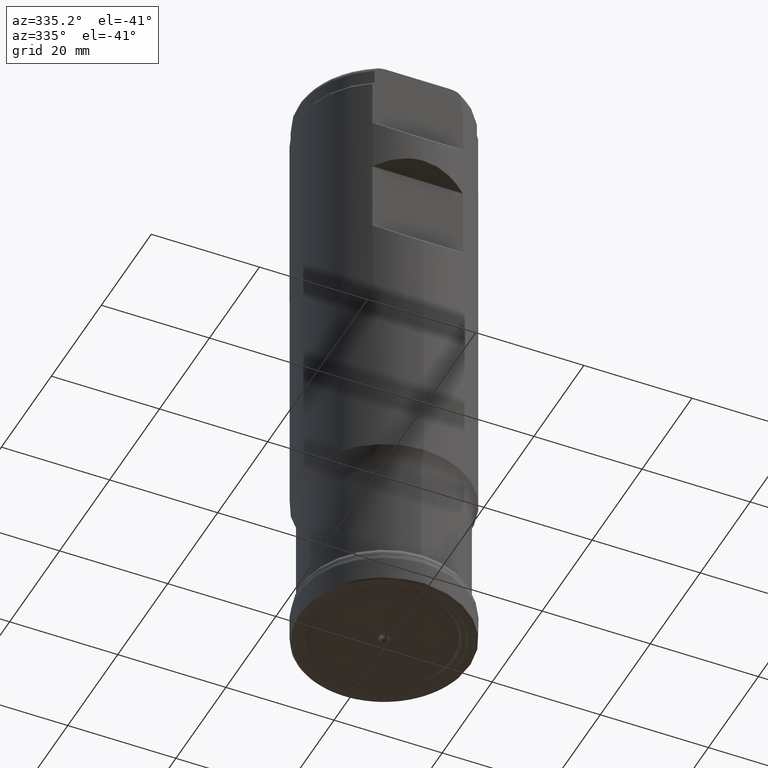
[diagram: clean part render]
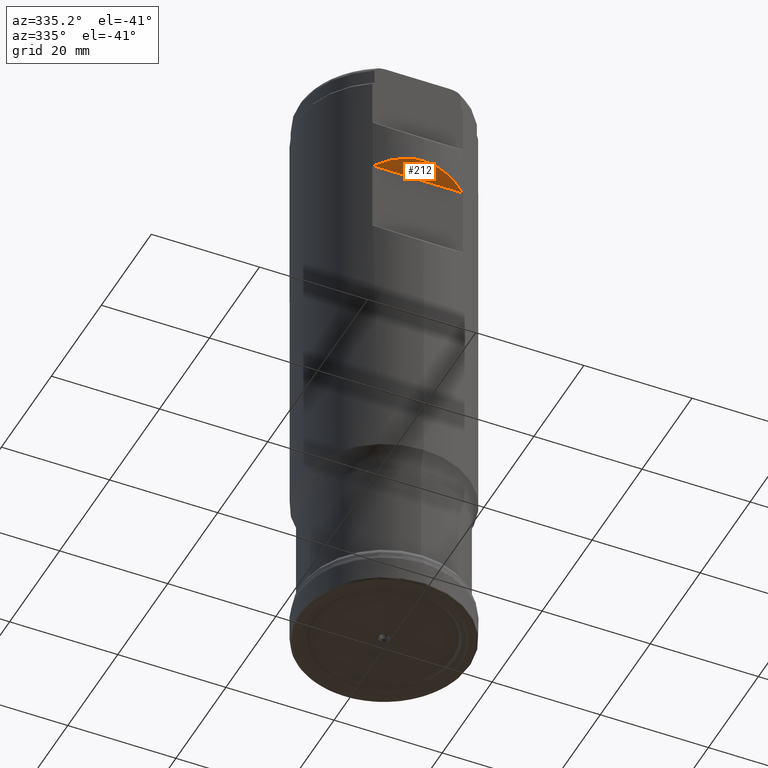
[diagram: same view with one face highlighted and labeled with its STEP entity id]
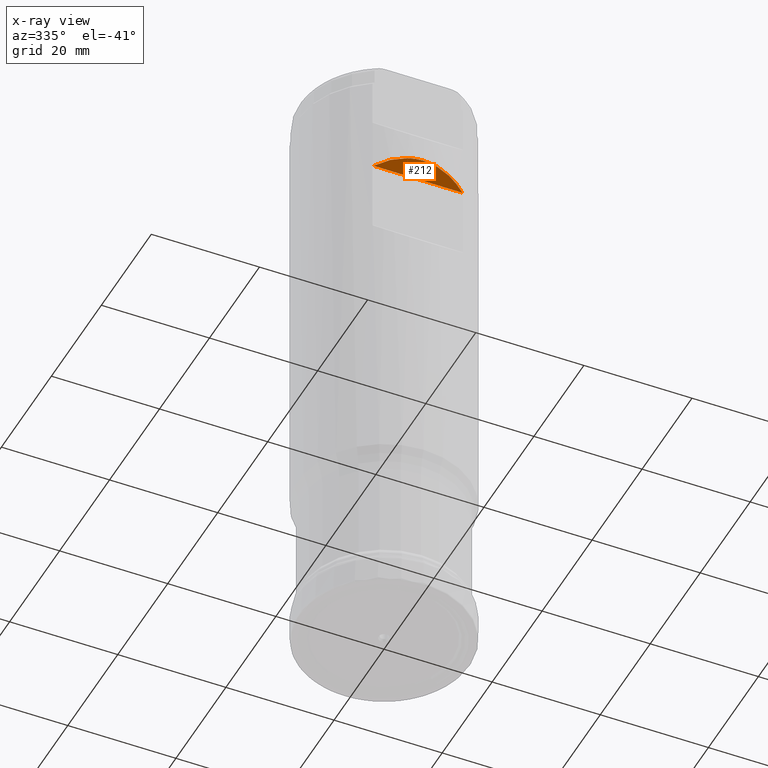
[diagram: x-ray of the same camera — body ghosted, the highlighted face saturated]
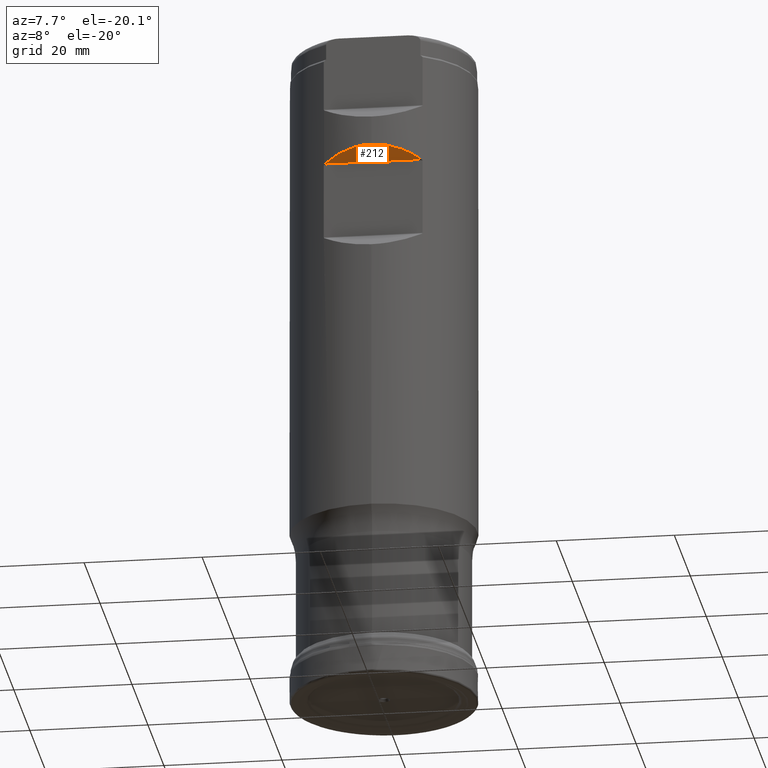
[diagram: same view with one face highlighted and labeled with its STEP entity id]
A machine part, auxiliary view. The second image highlights one B-rep face of the part: STEP entity #212.
The next image is the same camera in x-ray: the body ghosted, the highlighted face saturated — about 0% of this face is hidden behind the body in this view.
A second angle (auxiliary view) of the same face is appended — the face is thin or edge-on in the first view.
In plain terms, the highlighted planar face has unit normal (-0, -0.7071, -0.7071).
Its self-contained STEP definition (entity closure, byte-faithful):
#166=PLANE('',#860);
#182=FACE_OUTER_BOUND('',#412,.T.);
#212=ADVANCED_FACE('',(#182),#166,.T.);
#412=EDGE_LOOP('',(#578,#579));
#468=LINE('',#1475,#487);
#487=VECTOR('',#995,1.);
#497=ELLIPSE('',#811,22.4506403026729,15.875);
#578=ORIENTED_EDGE('',*,*,#739,.T.);
#579=ORIENTED_EDGE('',*,*,#697,.F.);
#636=VERTEX_POINT('',#1289);
#638=VERTEX_POINT('',#1292);
#697=EDGE_CURVE('',#636,#638,#497,.T.);
#739=EDGE_CURVE('',#636,#638,#468,.T.);
#811=AXIS2_PLACEMENT_3D('',#1291,#888,#889);
#860=AXIS2_PLACEMENT_3D('',#1476,#996,#997);
#888=DIRECTION('',(8.28344032153662E-16,0.707106781186548,0.707106781186547));
#889=DIRECTION('',(-8.28344032153662E-16,-0.707106781186547,0.707106781186548));
#995=DIRECTION('',(1.,-1.37230767120917E-30,-1.17145536458252E-15));
#996=DIRECTION('',(-8.28344032153662E-16,-0.707106781186548,-0.707106781186547));
#997=DIRECTION('',(8.29197821516914E-16,-0.707106781186547,0.707106781186548));
#1289=CARTESIAN_POINT('',(-8.22968557485393,-13.5752679656439,91.9691929656441));
#1291=CARTESIAN_POINT('',(0.,9.18349839919301E-14,78.393925));
#1292=CARTESIAN_POINT('',(8.22968557485393,-13.5752679656439,91.969192965644));
#1475=CARTESIAN_POINT('',(-17.5,-13.5752679656439,91.9691929656441));
#1476=CARTESIAN_POINT('',(-17.5,-16.8873999999999,95.281325));